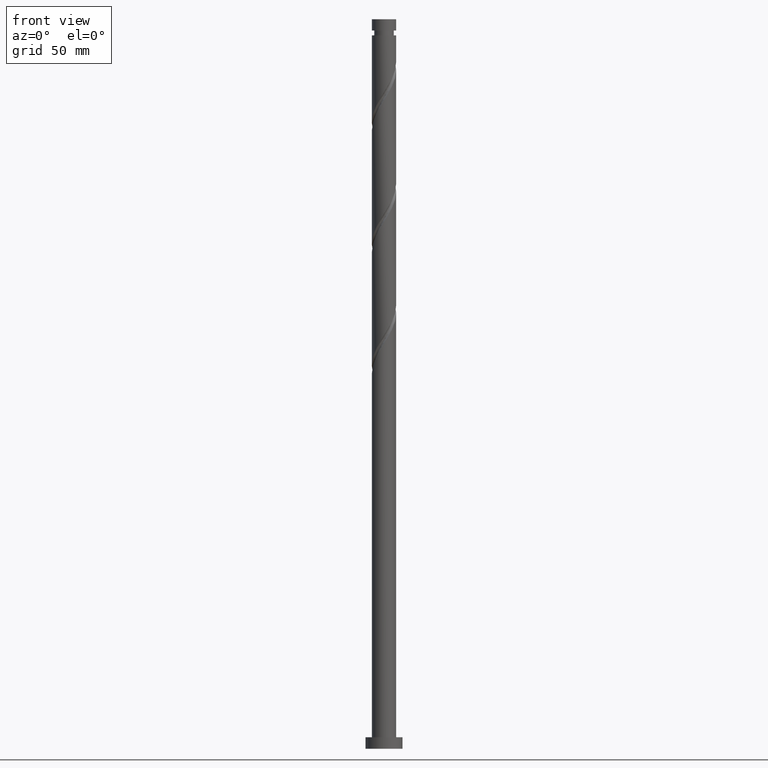
[diagram: clean part render]
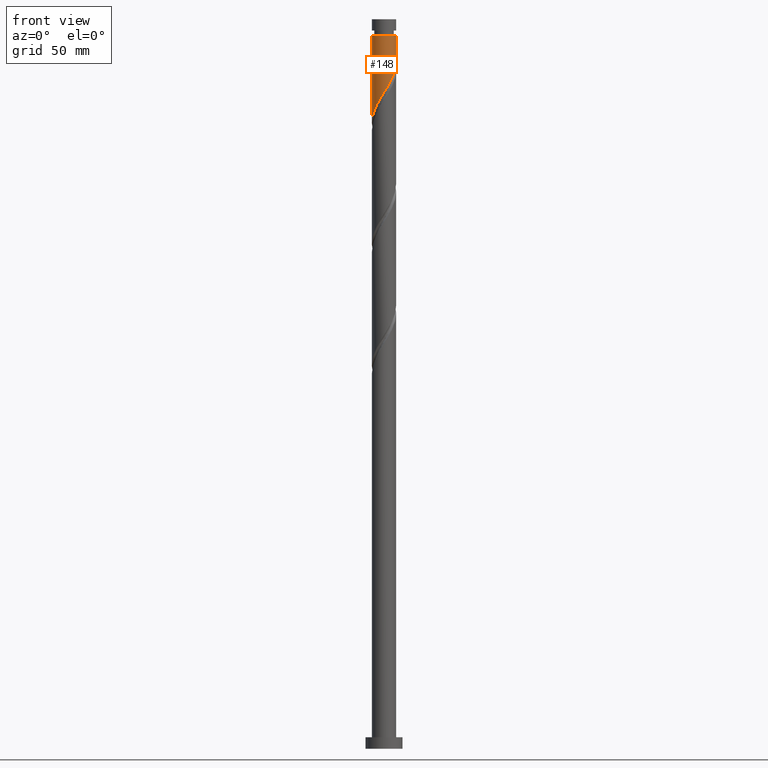
[diagram: same view with one face highlighted and labeled with its STEP entity id]
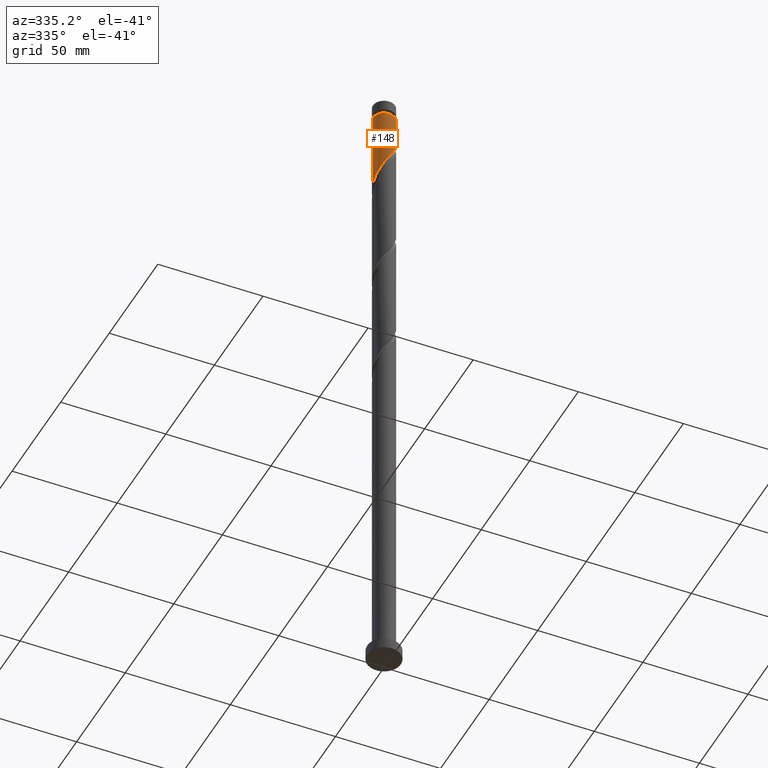
[diagram: same view with one face highlighted and labeled with its STEP entity id]
A machine part, front view. The second image highlights one B-rep face of the part: STEP entity #148.
A second angle (auxiliary view) of the same face is appended — the face is thin or edge-on in the first view.
In plain terms, the highlighted cylindrical surface (edge-blend (fillet) strip) has radius 5.25 mm, axis along (-0, -0, -1).
Its self-contained STEP definition (entity closure, byte-faithful):
#94 = EDGE_LOOP ( 'NONE', ( #551, #974, #1016, #1241 ) ) ;
#98 = CARTESIAN_POINT ( 'NONE',  ( -5.248479918644234132, -0.1263271292644584931, 270.5088013169861938 ) ) ;
#133 = VERTEX_POINT ( 'NONE', #1758 ) ;
#148 = ADVANCED_FACE ( 'NONE', ( #264 ), #1492, .T. ) ;
#175 = DIRECTION ( 'NONE',  ( -0.000000000000000000, -0.000000000000000000, -1.000000000000000000 ) ) ;
#243 = CARTESIAN_POINT ( 'NONE',  ( -5.249999999999999112, -0.06317271012352550230, 270.4086810831173580 ) ) ;
#259 = CARTESIAN_POINT ( 'NONE',  ( 4.783528297706726384, -2.163413281146016054, 293.0088013169863075 ) ) ;
#264 = FACE_OUTER_BOUND ( 'NONE', #94, .T. ) ;
#266 = CARTESIAN_POINT ( 'NONE',  ( -3.644826878028541550, -3.824610861482511837, 277.0713013169861938 ) ) ;
#271 = DIRECTION ( 'NONE',  ( -1.000000000000000000, 0.000000000000000000, 0.000000000000000000 ) ) ;
#316 = EDGE_CURVE ( 'NONE', #1848, #822, #797, .T. ) ;
#345 = CARTESIAN_POINT ( 'NONE',  ( 5.250000000000000000, 6.429395695523604153E-16, 315.0000000000000000 ) ) ;
#362 = DIRECTION ( 'NONE',  ( -0.000000000000000000, -0.000000000000000000, -1.000000000000000000 ) ) ;
#378 = CARTESIAN_POINT ( 'NONE',  ( -4.943312007247341100, -1.864424203761996468, 273.3213013169863075 ) ) ;
#409 = CARTESIAN_POINT ( 'NONE',  ( 0.1263271292644582433, -5.248479918644234132, 283.6338013169862506 ) ) ;
#415 = CARTESIAN_POINT ( 'NONE',  ( 0.000000000000000000, 0.000000000000000000, 315.0000000000000000 ) ) ;
#418 = CARTESIAN_POINT ( 'NONE',  ( 5.027286432312394915, -1.624439084748025897, 293.9463013169863075 ) ) ;
#492 = CIRCLE ( 'NONE', #1575, 5.249999999999975131 ) ;
#494 = CARTESIAN_POINT ( 'NONE',  ( -5.249999999999975131, 0.000000000000000000, 308.0088013169862506 ) ) ;
#528 = CARTESIAN_POINT ( 'NONE',  ( 0.7176887917047999332, -5.234246269600866697, 284.5713013169863075 ) ) ;
#546 = CARTESIAN_POINT ( 'NONE',  ( 4.539770163101061407, -2.702387477544005989, 292.0713013169861938 ) ) ;
#551 = ORIENTED_EDGE ( 'NONE', *, *, #840, .F. ) ;
#554 = CARTESIAN_POINT ( 'NONE',  ( -5.249999999999997335, 2.067219632731384895E-15, 270.3083183948922397 ) ) ;
#699 = CARTESIAN_POINT ( 'NONE',  ( 1.864424203761996468, -4.943312007247341100, 286.4463013169863643 ) ) ;
#710 = CARTESIAN_POINT ( 'NONE',  ( 4.182190512291786177, -3.173607177786274214, 291.1338013169861370 ) ) ;
#719 = CARTESIAN_POINT ( 'NONE',  ( 2.391046902423538345, -4.673905723312225646, 287.3838013169861370 ) ) ;
#754 = LINE ( 'NONE', #345, #1015 ) ;
#794 =( BOUNDED_CURVE ( )  B_SPLINE_CURVE ( 2, ( #1709, #1290, #856, #418, #259, #546, #710, #1129, #867, #1443, #719, #699, #1266, #528, #409, #1110, #830, #1891, #997, #1594, #1728, #266, #1883, #1585, #978, #378, #1451, #969, #98, #243, #554 ),
 .UNSPECIFIED., .F., .T. ) 
 B_SPLINE_CURVE_WITH_KNOTS ( ( 3, 2, 2, 2, 2, 2, 2, 2, 2, 2, 2, 2, 2, 2, 2, 3 ),
 ( 0.3045303401299219725, 0.3125000000000000000, 0.3214285714285714524, 0.3303571428571428492, 0.3392857142857143016, 0.3482142857142856984, 0.3571428571428571508, 0.3660714285714285476, 0.3750000000000000000, 0.3839285714285714524, 0.3928571428571428492, 0.4017857142857143016, 0.4107142857142856984, 0.4196428571428571508, 0.4285714285714285476, 0.4295303401299223611 ),
 .UNSPECIFIED. ) 
 CURVE ( )  GEOMETRIC_REPRESENTATION_ITEM ( )  RATIONAL_B_SPLINE_CURVE ( ( 0.9079949616361981946, 0.9039886423360612433, 0.9090909090909280454, 0.9033747362666029179, 0.9090909090909280454, 0.9033747362666029179, 0.9090909090909280454, 0.9033747362666029179, 0.9090909090909280454, 0.9033747362666029179, 0.9090909090909280454, 0.9033747362666029179, 0.9090909090909280454, 0.9033747362666029179, 0.9090909090909280454, 0.9033747362666029179, 0.9090909090909280454, 0.9033747362666029179, 0.9090909090909280454, 0.9033747362666029179, 0.9090909090909280454, 0.9033747362666029179, 0.9090909090909280454, 0.9033747362666029179, 0.9090909090909280454, 0.9033747362666029179, 0.9090909090909280454, 0.9033747362666029179, 0.9090909090909280454, 0.9084770030214696090, 0.9079949616361977505 ) ) 
 REPRESENTATION_ITEM ( '' )  );
#797 = LINE ( 'NONE', #933, #1293 ) ;
#822 = VERTEX_POINT ( 'NONE', #1702 ) ;
#830 = CARTESIAN_POINT ( 'NONE',  ( -1.044736808961954200, -5.144999999999996909, 281.7588013169861938 ) ) ;
#840 = EDGE_CURVE ( 'NONE', #133, #1309, #754, .T. ) ;
#856 = CARTESIAN_POINT ( 'NONE',  ( 5.144999999999996909, -1.044736808961954644, 294.8838013169862506 ) ) ;
#867 = CARTESIAN_POINT ( 'NONE',  ( 3.371140231283796584, -4.024663158702826316, 289.2588013169862506 ) ) ;
#883 = DIRECTION ( 'NONE',  ( -0.000000000000000000, -0.000000000000000000, -1.000000000000000000 ) ) ;
#933 = CARTESIAN_POINT ( 'NONE',  ( -5.250000000000000000, 0.000000000000000000, 315.0000000000000000 ) ) ;
#969 = CARTESIAN_POINT ( 'NONE',  ( -5.234246269600866697, -0.7176887917048000443, 271.4463013169862506 ) ) ;
#974 = ORIENTED_EDGE ( 'NONE', *, *, #1599, .T. ) ;
#978 = CARTESIAN_POINT ( 'NONE',  ( -4.673905723312225646, -2.391046902423538789, 274.2588013169861938 ) ) ;
#997 = CARTESIAN_POINT ( 'NONE',  ( -2.163413281146016054, -4.783528297706726384, 279.8838013169862506 ) ) ;
#1015 = VECTOR ( 'NONE', #362, 1000.000000000000000 ) ;
#1016 = ORIENTED_EDGE ( 'NONE', *, *, #316, .T. ) ;
#1106 = EDGE_CURVE ( 'NONE', #1309, #822, #794, .T. ) ;
#1110 = CARTESIAN_POINT ( 'NONE',  ( -0.4650345331758833356, -5.262713567687602456, 282.6963013169861938 ) ) ;
#1129 = CARTESIAN_POINT ( 'NONE',  ( 3.824610861482511837, -3.644826878028541550, 290.1963013169863075 ) ) ;
#1241 = ORIENTED_EDGE ( 'NONE', *, *, #1106, .F. ) ;
#1266 = CARTESIAN_POINT ( 'NONE',  ( 1.291056497733397368, -5.088779138424103898, 285.5088013169861938 ) ) ;
#1290 = CARTESIAN_POINT ( 'NONE',  ( 5.249999999999998224, -0.5276448530110859902, 295.7200473159285821 ) ) ;
#1293 = VECTOR ( 'NONE', #175, 1000.000000000000000 ) ;
#1309 = VERTEX_POINT ( 'NONE', #1336 ) ;
#1336 = CARTESIAN_POINT ( 'NONE',  ( 5.249999999999996447, -2.537381498659461794E-15, 296.5583183948922397 ) ) ;
#1443 = CARTESIAN_POINT ( 'NONE',  ( 2.917669601085083109, -4.404499439377113745, 288.3213013169861938 ) ) ;
#1451 = CARTESIAN_POINT ( 'NONE',  ( -5.088779138424103898, -1.291056497733397812, 272.3838013169862506 ) ) ;
#1492 = CYLINDRICAL_SURFACE ( 'NONE', #1858, 5.250000000000000000 ) ;
#1575 = AXIS2_PLACEMENT_3D ( 'NONE', #1795, #883, #1767 ) ;
#1585 = CARTESIAN_POINT ( 'NONE',  ( -4.404499439377112857, -2.917669601085083109, 275.1963013169862506 ) ) ;
#1594 = CARTESIAN_POINT ( 'NONE',  ( -2.702387477544005989, -4.539770163101061407, 278.9463013169863643 ) ) ;
#1599 = EDGE_CURVE ( 'NONE', #133, #1848, #492, .T. ) ;
#1702 = CARTESIAN_POINT ( 'NONE',  ( -5.249999999999997335, 2.067219632731384895E-15, 270.3083183948922397 ) ) ;
#1709 = CARTESIAN_POINT ( 'NONE',  ( 5.249999999999996447, -2.537381498659461794E-15, 296.5583183948922397 ) ) ;
#1728 = CARTESIAN_POINT ( 'NONE',  ( -3.173607177786274214, -4.182190512291786177, 278.0088013169861938 ) ) ;
#1758 = CARTESIAN_POINT ( 'NONE',  ( 5.249999999999975131, 6.429395695523589362E-16, 308.0088013169862506 ) ) ;
#1767 = DIRECTION ( 'NONE',  ( -1.000000000000000000, 0.000000000000000000, 0.000000000000000000 ) ) ;
#1795 = CARTESIAN_POINT ( 'NONE',  ( 0.000000000000000000, 0.000000000000000000, 308.0088013169862506 ) ) ;
#1848 = VERTEX_POINT ( 'NONE', #494 ) ;
#1858 = AXIS2_PLACEMENT_3D ( 'NONE', #415, #1897, #271 ) ;
#1883 = CARTESIAN_POINT ( 'NONE',  ( -4.024663158702826316, -3.371140231283797029, 276.1338013169862506 ) ) ;
#1891 = CARTESIAN_POINT ( 'NONE',  ( -1.624439084748025675, -5.027286432312394915, 280.8213013169863075 ) ) ;
#1897 = DIRECTION ( 'NONE',  ( -0.000000000000000000, -0.000000000000000000, -1.000000000000000000 ) ) ;